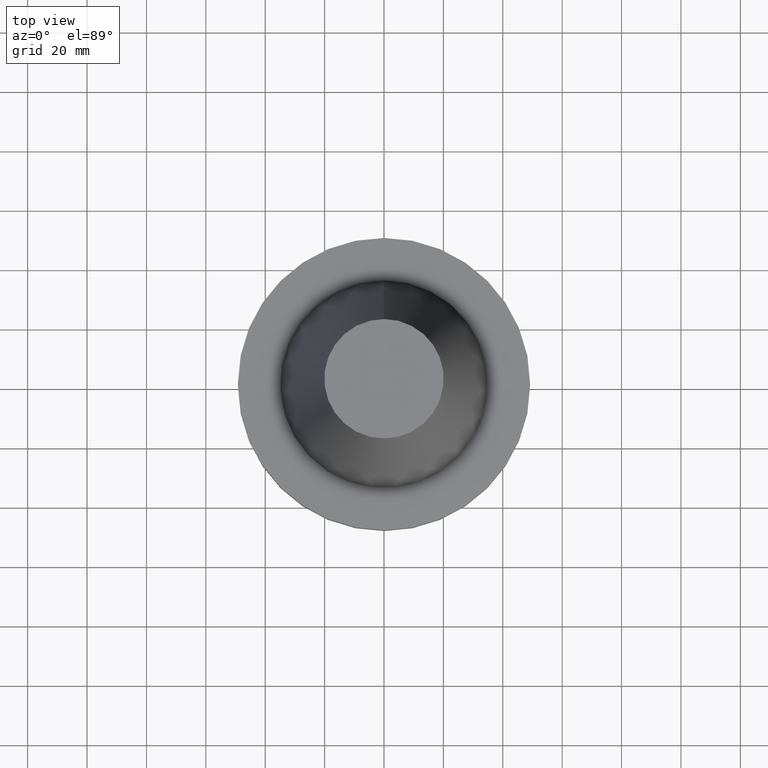
[diagram: clean part render]
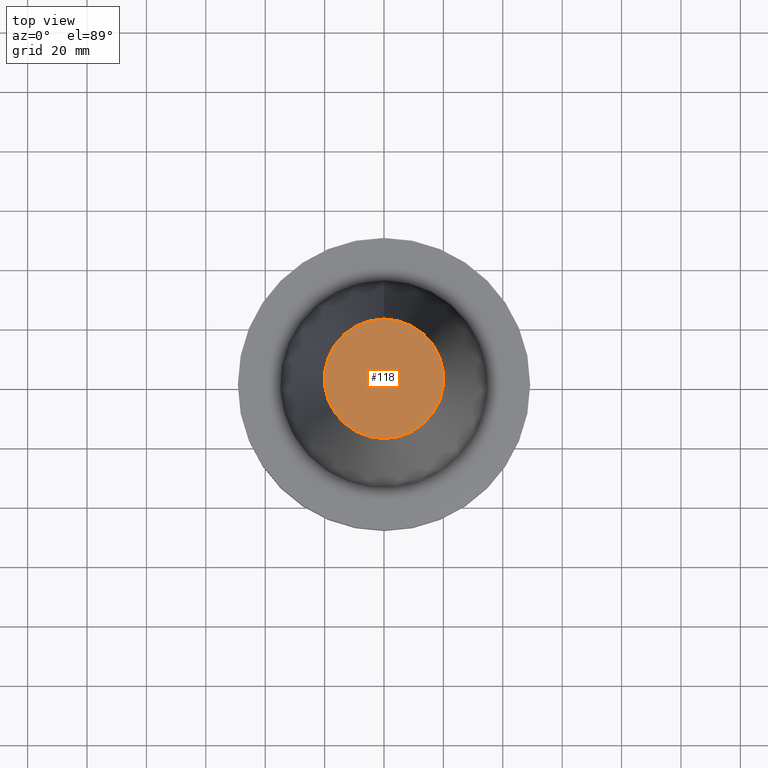
[diagram: same view with one face highlighted and labeled with its STEP entity id]
A machine part, top view. The second image highlights one B-rep face of the part: STEP entity #118.
In plain terms, the highlighted planar face has unit normal (-0, -0, 1).
Its self-contained STEP definition (entity closure, byte-faithful):
#84=EDGE_CURVE('Unnamed[1]',#198,#198,#199,.T.);
#118=ADVANCED_FACE('Unnamed[1]',(#251),#252,.T.);
#198=VERTEX_POINT('',#342);
#199=CIRCLE('',#343,20.1083333297217);
#251=FACE_OUTER_BOUND('',#408,.T.);
#252=PLANE('',#409);
#342=CARTESIAN_POINT('',(-6.22120573966855E-015,20.1083333297217,101.6));
#343=AXIS2_PLACEMENT_3D('',#493,#494,#495);
#408=EDGE_LOOP('',(#553));
#409=AXIS2_PLACEMENT_3D('',#554,#555,#556);
#493=CARTESIAN_POINT('',(-6.22120573966855E-015,-1.24424114793371E-014,101.6));
#494=DIRECTION('',(6.12323399573676E-017,1.22464679914808E-016,-1.0));
#495=DIRECTION('',(-1.23259516440824E-032,1.0,1.22464679914808E-016));
#553=ORIENTED_EDGE('',*,*,#84,.F.);
#554=CARTESIAN_POINT('',(-6.22120573966855E-015,10.0541666648608,101.6));
#555=DIRECTION('',(-6.12323399573677E-017,-1.22464679914735E-016,1.0));
#556=DIRECTION('',(1.23259516440783E-032,-1.0,-1.22464679914735E-016));